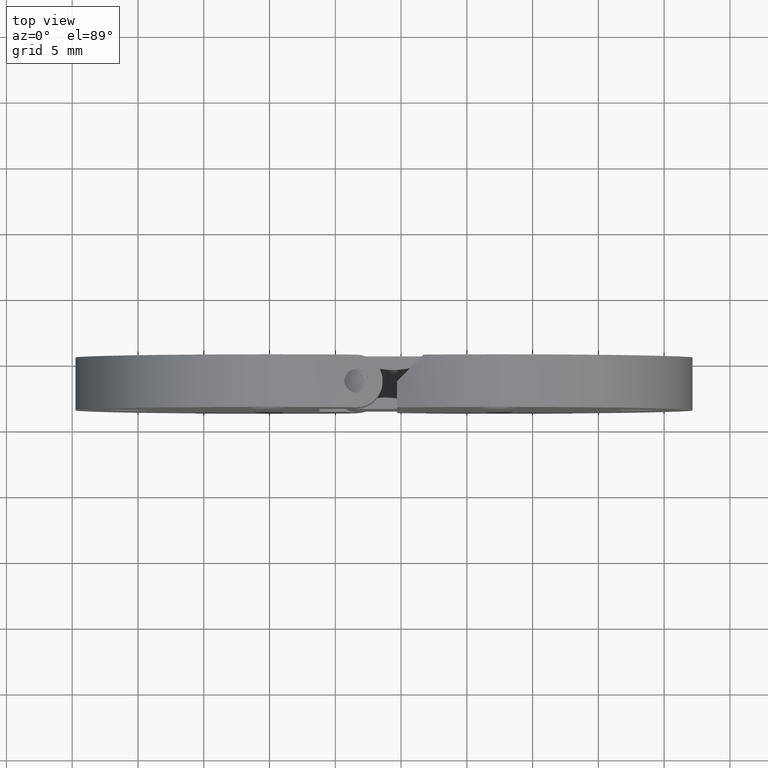
[diagram: clean part render]
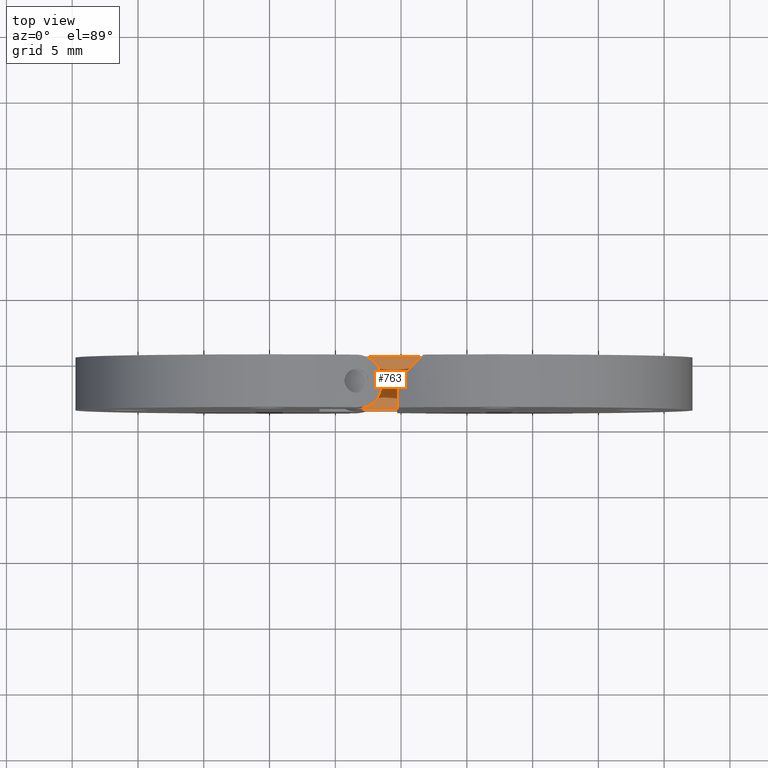
[diagram: same view with one face highlighted and labeled with its STEP entity id]
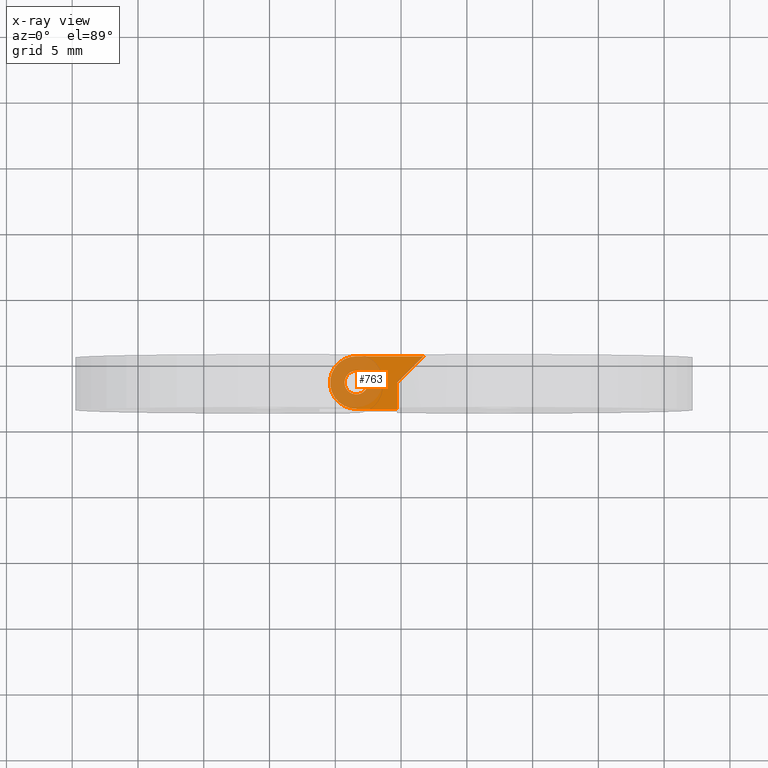
[diagram: x-ray of the same camera — body ghosted, the highlighted face saturated]
A machine part, top view. The second image highlights one B-rep face of the part: STEP entity #763.
The next image is the same camera in x-ray: the body ghosted, the highlighted face saturated — about 56% of this face is hidden behind the body in this view.
In plain terms, the highlighted planar face has unit normal (-0, -0, -1).
Its self-contained STEP definition (entity closure, byte-faithful):
#106=FACE_BOUND('',#287,.T.);
#149=CIRCLE('',#853,2.);
#152=CIRCLE('',#861,0.9);
#202=FACE_OUTER_BOUND('',#286,.T.);
#286=EDGE_LOOP('',(#690,#691,#692,#693,#694));
#287=EDGE_LOOP('',(#695));
#319=LINE('',#1341,#356);
#321=LINE('',#1357,#358);
#329=LINE('',#1405,#366);
#331=LINE('',#1412,#368);
#356=VECTOR('',#1002,5.1);
#358=VECTOR('',#1018,2.82842712474619);
#366=VECTOR('',#1076,3.1);
#368=VECTOR('',#1086,2.);
#411=VERTEX_POINT('',#1338);
#412=VERTEX_POINT('',#1340);
#419=VERTEX_POINT('',#1356);
#432=VERTEX_POINT('',#1395);
#434=VERTEX_POINT('',#1403);
#436=VERTEX_POINT('',#1414);
#492=EDGE_CURVE('',#411,#412,#319,.T.);
#500=EDGE_CURVE('',#412,#419,#321,.F.);
#516=EDGE_CURVE('',#432,#411,#149,.T.);
#521=EDGE_CURVE('',#434,#432,#329,.T.);
#524=EDGE_CURVE('',#419,#434,#331,.T.);
#525=EDGE_CURVE('',#436,#436,#152,.T.);
#690=ORIENTED_EDGE('',*,*,#516,.F.);
#691=ORIENTED_EDGE('',*,*,#521,.F.);
#692=ORIENTED_EDGE('',*,*,#524,.F.);
#693=ORIENTED_EDGE('',*,*,#500,.F.);
#694=ORIENTED_EDGE('',*,*,#492,.F.);
#695=ORIENTED_EDGE('',*,*,#525,.F.);
#719=PLANE('',#860);
#763=ADVANCED_FACE('',(#202,#106),#719,.F.);
#853=AXIS2_PLACEMENT_3D('',#1397,#1067,#1068);
#860=AXIS2_PLACEMENT_3D('',#1413,#1087,#1088);
#861=AXIS2_PLACEMENT_3D('',#1415,#1089,#1090);
#1002=DIRECTION('',(-1.,0.,0.));
#1018=DIRECTION('',(-0.707106781186547,0.707106781186548,0.));
#1067=DIRECTION('center_axis',(0.,0.,1.));
#1068=DIRECTION('ref_axis',(0.,1.,0.));
#1076=DIRECTION('',(1.,0.,0.));
#1086=DIRECTION('',(0.,-1.,0.));
#1087=DIRECTION('center_axis',(0.,0.,1.));
#1088=DIRECTION('ref_axis',(-1.,0.,0.));
#1089=DIRECTION('center_axis',(0.,0.,-1.));
#1090=DIRECTION('ref_axis',(-1.,0.,0.));
#1338=CARTESIAN_POINT('',(5.55111512312578E-16,2.,-5.9));
#1340=CARTESIAN_POINT('',(-5.1,2.,-5.9));
#1341=CARTESIAN_POINT('',(2.,2.,-5.9));
#1356=CARTESIAN_POINT('',(-3.1,0.,-5.9));
#1357=CARTESIAN_POINT('',(-2.825,-0.275000000000001,-5.9));
#1395=CARTESIAN_POINT('',(0.,-2.,-5.9));
#1397=CARTESIAN_POINT('Origin',(6.93889390390723E-16,9.71445146547012E-16,
-5.9));
#1403=CARTESIAN_POINT('',(-3.1,-2.,-5.9));
#1405=CARTESIAN_POINT('',(-11.8,-2.,-5.9));
#1412=CARTESIAN_POINT('',(-3.1,2.,-5.9));
#1413=CARTESIAN_POINT('Origin',(2.,2.,-5.9));
#1414=CARTESIAN_POINT('',(0.9,-1.10218211923262E-16,-5.9));
#1415=CARTESIAN_POINT('Origin',(0.,0.,-5.9));